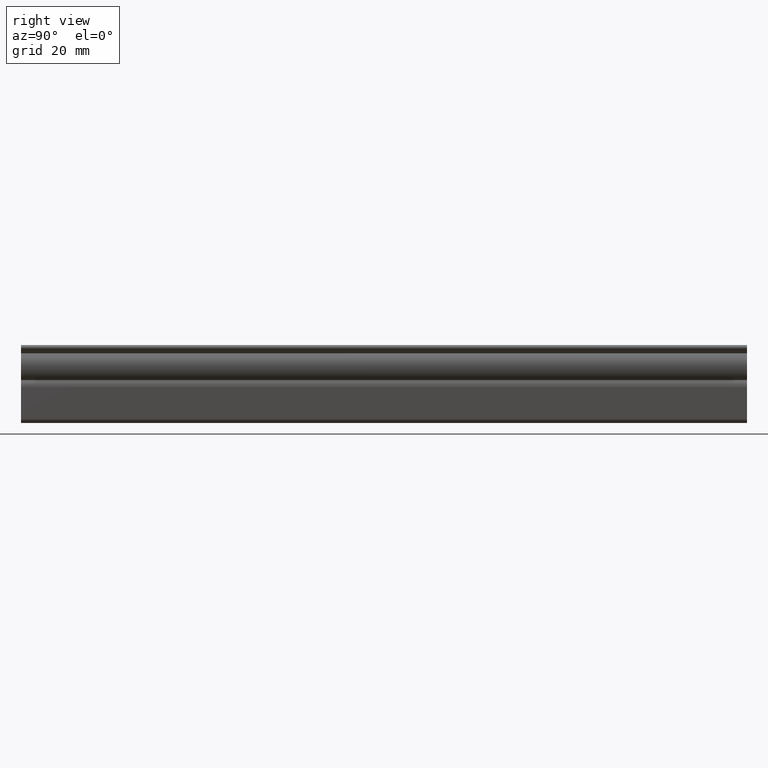
[diagram: clean part render]
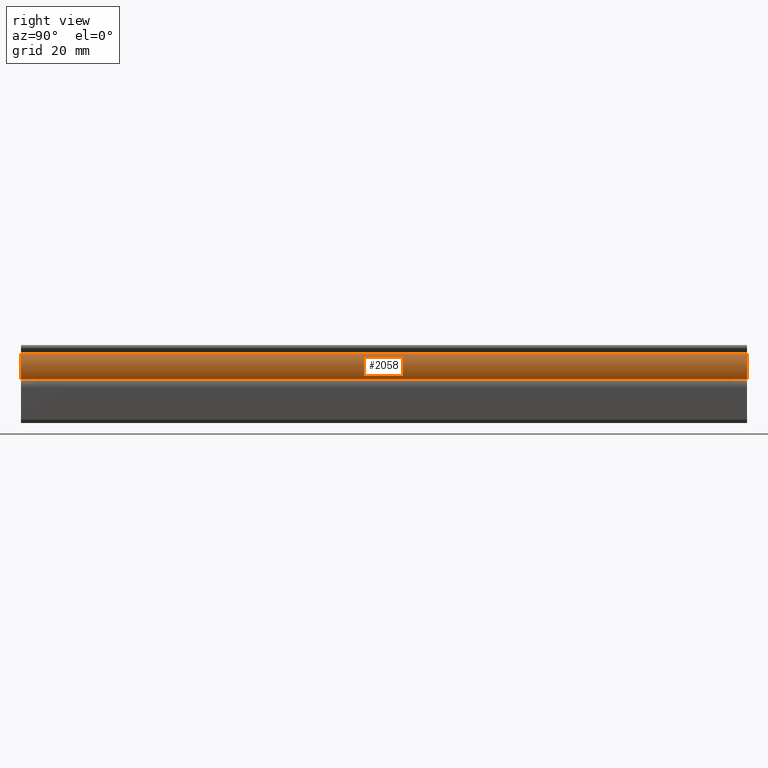
[diagram: same view with one face highlighted and labeled with its STEP entity id]
A machine part, right view. The second image highlights one B-rep face of the part: STEP entity #2058.
In plain terms, the highlighted face is a freeform B-spline surface patch.
Its self-contained STEP definition (entity closure, byte-faithful):
#401=CARTESIAN_POINT('',(4.340627696665885,0.0,-9.521133945698090));
#402=VERTEX_POINT('',#401);
#416=CARTESIAN_POINT('',(4.686640231128500,0.0,-2.418648425805345));
#417=VERTEX_POINT('',#416);
#418=CARTESIAN_POINT('',(4.340627696665884,0.0,-9.521133945698090));
#419=CARTESIAN_POINT('',(7.307685329370029,0.0,-6.106009280139694));
#420=CARTESIAN_POINT('',(4.686640231128497,0.0,-2.418648425805347));
#428=(BOUNDED_CURVE()B_SPLINE_CURVE(2,(#418,#419,#420),.UNSPECIFIED.,.F.,.U.)CURVE()GEOMETRIC_REPRESENTATION_ITEM()QUASI_UNIFORM_CURVE()RATIONAL_B_SPLINE_CURVE((1.0,0.785910786173571,1.0))REPRESENTATION_ITEM(''));
#429=EDGE_CURVE('',#402,#417,#428,.T.);
#993=CARTESIAN_POINT('',(4.686640231128500,200.0,-2.418648425805345));
#994=VERTEX_POINT('',#993);
#1008=CARTESIAN_POINT('',(4.340627696665885,200.0,-9.521133945698090));
#1009=VERTEX_POINT('',#1008);
#1010=CARTESIAN_POINT('',(4.340627696665884,200.0,-9.521133945698090));
#1011=CARTESIAN_POINT('',(7.307685329370029,199.999999999999970,-6.106009280139694));
#1012=CARTESIAN_POINT('',(4.686640231128497,200.0,-2.418648425805347));
#1020=(BOUNDED_CURVE()B_SPLINE_CURVE(2,(#1010,#1011,#1012),.UNSPECIFIED.,.F.,.U.)CURVE()GEOMETRIC_REPRESENTATION_ITEM()QUASI_UNIFORM_CURVE()RATIONAL_B_SPLINE_CURVE((1.0,0.785910786173571,1.0))REPRESENTATION_ITEM(''));
#1021=EDGE_CURVE('',#1009,#994,#1020,.T.);
#2026=CARTESIAN_POINT('',(4.340627696665885,200.0,-9.521133945698090));
#2027=CARTESIAN_POINT('',(4.340627696665885,0.0,-9.521133945698090));
#2028=QUASI_UNIFORM_CURVE('',1,(#2026,#2027),.UNSPECIFIED.,.F.,.U.);
#2029=EDGE_CURVE('',#1009,#402,#2028,.T.);
#2034=CARTESIAN_POINT('',(4.657390620416058,205.0,-2.377877141120605));
#2035=CARTESIAN_POINT('',(4.657390620416058,-5.125000000000000,-2.377877141120605));
#2036=CARTESIAN_POINT('',(7.486937671752974,205.000000000000060,-6.285891892960239));
#2037=CARTESIAN_POINT('',(7.486937671752974,-5.125000000000001,-6.285891892960239));
#2038=CARTESIAN_POINT('',(4.129640134342715,205.0,-9.751071406582103));
#2039=CARTESIAN_POINT('',(4.129640134342715,-5.125000000000000,-9.751071406582103));
#2047=(BOUNDED_SURFACE()B_SPLINE_SURFACE(1,2,((#2034,#2036,#2038),(#2035,#2037,#2039)),.UNSPECIFIED.,.F.,.F.,.U.)B_SPLINE_SURFACE_WITH_KNOTS((2,2),(3,3),(0.0,210.125000000000000),(0.0,8.371315388123476),.UNSPECIFIED.)GEOMETRIC_REPRESENTATION_ITEM()RATIONAL_B_SPLINE_SURFACE(((1.0,0.766044443118978,1.0),(1.0,0.766044443118978,1.0)))REPRESENTATION_ITEM('')SURFACE());
#2048=ORIENTED_EDGE('',*,*,#429,.F.);
#2049=ORIENTED_EDGE('',*,*,#2029,.F.);
#2050=ORIENTED_EDGE('',*,*,#1021,.T.);
#2051=CARTESIAN_POINT('',(4.686640231128500,200.0,-2.418648425805345));
#2052=CARTESIAN_POINT('',(4.686640231128500,0.0,-2.418648425805345));
#2053=QUASI_UNIFORM_CURVE('',1,(#2051,#2052),.UNSPECIFIED.,.F.,.U.);
#2054=EDGE_CURVE('',#994,#417,#2053,.T.);
#2055=ORIENTED_EDGE('',*,*,#2054,.T.);
#2056=EDGE_LOOP('',(#2048,#2049,#2050,#2055));
#2057=FACE_OUTER_BOUND('',#2056,.T.);
#2058=ADVANCED_FACE('',(#2057),#2047,.T.);